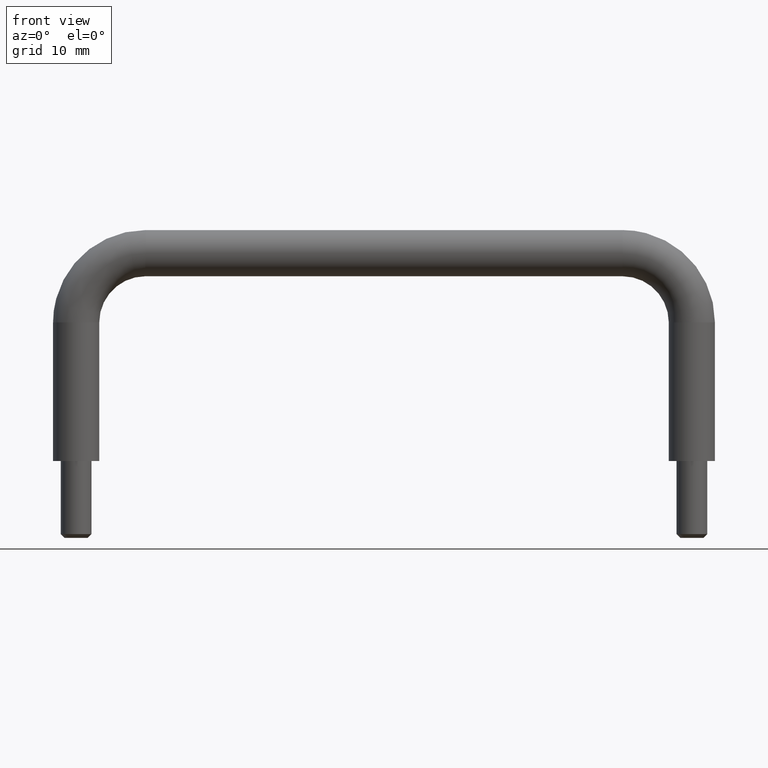
[diagram: clean part render]
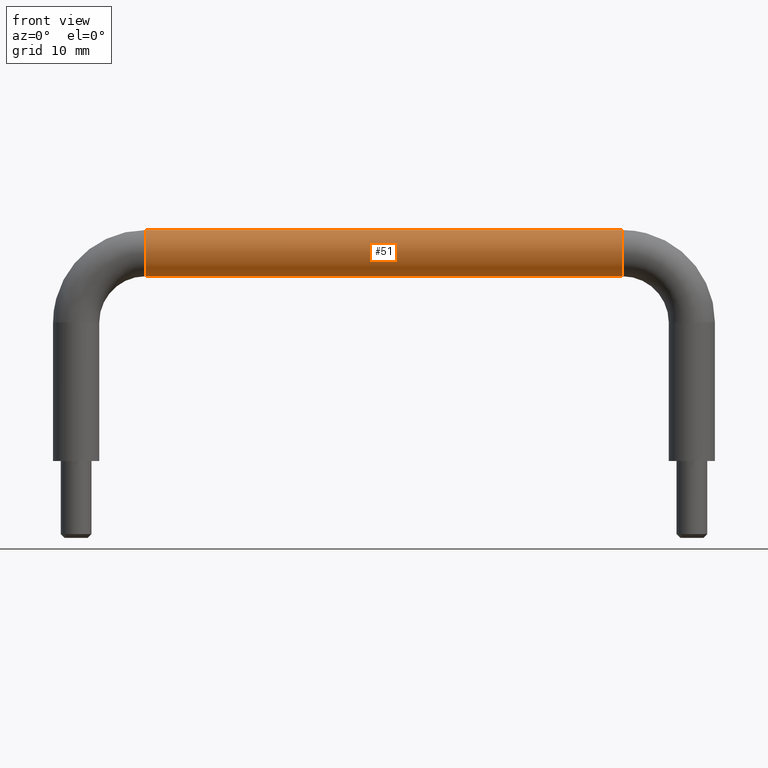
[diagram: same view with one face highlighted and labeled with its STEP entity id]
A machine part, front view. The second image highlights one B-rep face of the part: STEP entity #51.
In plain terms, the highlighted cylindrical surface (edge-blend (fillet) strip) has radius 3 mm, axis along (-1, -0, 0).
Its self-contained STEP definition (entity closure, byte-faithful):
#51=ADVANCED_FACE('',(#175),#174,.T.);
#174=CYLINDRICAL_SURFACE('',#524,3.00000000000E+00);
#175=FACE_OUTER_BOUND('',#525,.T.);
#521=CARTESIAN_POINT('',(0.00000000000E+00,0.00000000000E+00,3.00000000000E+00));
#522=DIRECTION('',(-1.00000000000E+00,-0.00000000000E+00,0.00000000000E+00));
#523=DIRECTION('',(0.00000000000E+00,0.00000000000E+00,1.00000000000E+00));
#524=AXIS2_PLACEMENT_3D('',#521,#522,#523);
#525=EDGE_LOOP('',(#640,#641,#642,#643));
#640=ORIENTED_EDGE('',*,*,#698,.F.);
#641=ORIENTED_EDGE('',*,*,#710,.T.);
#642=ORIENTED_EDGE('',*,*,#686,.T.);
#643=ORIENTED_EDGE('',*,*,#711,.F.);
#686=EDGE_CURVE('',#741,#734,#742,.T.);
#698=EDGE_CURVE('',#769,#762,#824,.T.);
#710=EDGE_CURVE('',#769,#741,#902,.T.);
#711=EDGE_CURVE('',#762,#734,#908,.T.);
#734=VERTEX_POINT('',#1008);
#741=VERTEX_POINT('',#1013);
#742=CIRCLE('',#1017,3.00000000000E+00);
#762=VERTEX_POINT('',#1029);
#769=VERTEX_POINT('',#1034);
#824=CIRCLE('',#1077,3.00000000000E+00);
#902=(BOUNDED_CURVE() B_SPLINE_CURVE(1,(#1124,#1125),.UNSPECIFIED.,.F.,.F.) B_SPLINE_CURVE_WITH_KNOTS((2,2),(8.33333332085E-02,9.16666666563E-01),.UNSPECIFIED.) CURVE() GEOMETRIC_REPRESENTATION_ITEM() RATIONAL_B_SPLINE_CURVE((1.00000000000E+00,1.00000000000E+00)) REPRESENTATION_ITEM('') );
#908=(BOUNDED_CURVE() B_SPLINE_CURVE(1,(#1126,#1127),.UNSPECIFIED.,.F.,.F.) B_SPLINE_CURVE_WITH_KNOTS((2,2),(8.33333333333E-02,9.16666666667E-01),.UNSPECIFIED.) CURVE() GEOMETRIC_REPRESENTATION_ITEM() RATIONAL_B_SPLINE_CURVE((7.50000000000E-01,7.50000000000E-01)) REPRESENTATION_ITEM('') );
#1008=CARTESIAN_POINT('',(-3.09999999999E+01,0.00000000000E+00,0.00000000000E+00));
#1013=CARTESIAN_POINT('',(-3.09999999999E+01,-1.48029736617E-16,6.00000000000E+00));
#1014=CARTESIAN_POINT('',(-3.09999999999E+01,0.00000000000E+00,3.00000000000E+00));
#1015=DIRECTION('',(1.00000000000E+00,0.00000000000E+00,0.00000000000E+00));
#1016=DIRECTION('',(-0.00000000000E+00,4.93432455390E-17,-1.00000000000E+00));
#1017=AXIS2_PLACEMENT_3D('',#1014,#1015,#1016);
#1029=CARTESIAN_POINT('',(3.09999999999E+01,0.00000000000E+00,0.00000000000E+00));
#1034=CARTESIAN_POINT('',(3.09999999999E+01,-1.48029736617E-16,6.00000000000E+00));
#1074=CARTESIAN_POINT('',(3.09999999999E+01,0.00000000000E+00,3.00000000000E+00));
#1075=DIRECTION('',(1.00000000000E+00,0.00000000000E+00,0.00000000000E+00));
#1076=DIRECTION('',(-0.00000000000E+00,4.93432455390E-17,-1.00000000000E+00));
#1077=AXIS2_PLACEMENT_3D('',#1074,#1075,#1076);
#1124=CARTESIAN_POINT('',(3.10000000092E+01,0.00000000000E+00,6.00000000000E+00));
#1125=CARTESIAN_POINT('',(-3.09999999922E+01,0.00000000000E+00,6.00000000000E+00));
#1126=CARTESIAN_POINT('',(3.09999999999E+01,-1.48029736617E-16,1.48029736617E-16));
#1127=CARTESIAN_POINT('',(-3.09999999999E+01,-1.48029736617E-16,1.48029736617E-16));